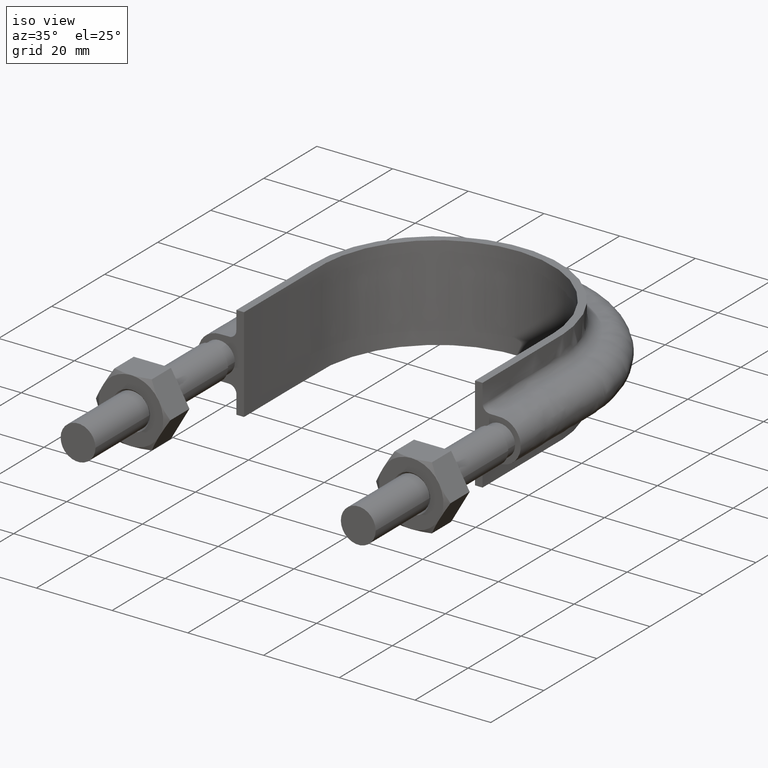
[diagram: clean part render]
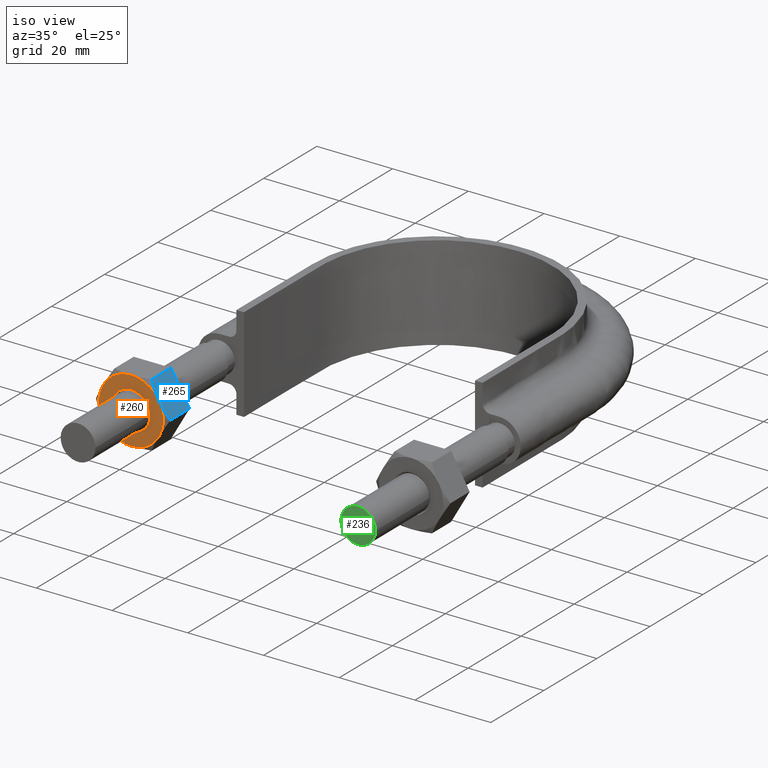
[diagram: same view with three faces highlighted in distinct colors, each labeled with its STEP entity id]
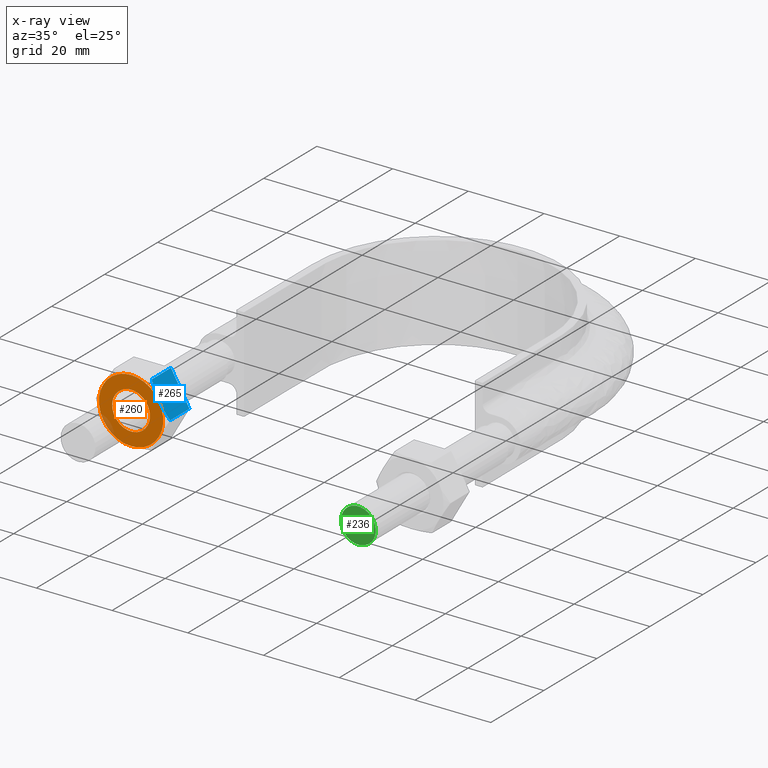
[diagram: x-ray of the same camera — body ghosted, the three highlighted faces saturated]
A machine part, iso view with three faces highlighted in distinct colors.
The next image is the same camera in x-ray (body ghosted, the three faces saturated) — at least one of them is partly hidden behind the body in this view.
Their STEP definitions:

[orange] entity #260 — the highlighted planar face has unit normal (-0, 1, -0).
#260 = ADVANCED_FACE( '', ( #390, #391 ), #392, .F. );
#390 = FACE_OUTER_BOUND( '', #1387, .T. );
#391 = FACE_BOUND( '', #1388, .T. );
#392 = PLANE( '', #1389 );
#1387 = EDGE_LOOP( '', ( #1744, #1745, #1746, #1747, #1748, #1749 ) );
#1388 = EDGE_LOOP( '', ( #1750 ) );
#1389 = AXIS2_PLACEMENT_3D( '', #1751, #1752, #1753 );
#1744 = ORIENTED_EDGE( '', *, *, #2086, .F. );
#1745 = ORIENTED_EDGE( '', *, *, #2091, .F. );
#1746 = ORIENTED_EDGE( '', *, *, #2068, .F. );
#1747 = ORIENTED_EDGE( '', *, *, #2083, .F. );
#1748 = ORIENTED_EDGE( '', *, *, #2053, .F. );
#1749 = ORIENTED_EDGE( '', *, *, #2092, .F. );
#1750 = ORIENTED_EDGE( '', *, *, #2093, .T. );
#1751 = CARTESIAN_POINT( '', ( -37.0000000000000, 20.0000000000000, -1.48980220521233E-015 ) );
#1752 = DIRECTION( '', ( -1.49966072182214E-032, 1.00000000000000, -6.12303176911188E-017 ) );
#1753 = DIRECTION( '', ( 1.00000000000000, 0.000000000000000, -2.44921270764476E-016 ) );
#2053 = EDGE_CURVE( '', #2236, #2238, #2239, .T. );
#2068 = EDGE_CURVE( '', #2259, #2266, #2267, .T. );
#2083 = EDGE_CURVE( '', #2238, #2259, #2292, .T. );
#2086 = EDGE_CURVE( '', #2296, #2241, #2297, .T. );
#2091 = EDGE_CURVE( '', #2266, #2296, #2303, .T. );
#2092 = EDGE_CURVE( '', #2241, #2236, #2304, .T. );
#2093 = EDGE_CURVE( '', #2305, #2305, #2306, .T. );
#2236 = VERTEX_POINT( '', #2733 );
#2238 = VERTEX_POINT( '', #2740 );
#2239 = CIRCLE( '', #2741, 8.50000000000000 );
#2241 = VERTEX_POINT( '', #2748 );
#2259 = VERTEX_POINT( '', #2781 );
#2266 = VERTEX_POINT( '', #2800 );
#2267 = CIRCLE( '', #2801, 8.50000000000000 );
#2292 = CIRCLE( '', #2836, 8.50000000000000 );
#2296 = VERTEX_POINT( '', #2845 );
#2297 = CIRCLE( '', #2846, 8.50000000000000 );
#2303 = CIRCLE( '', #2859, 8.50000000000000 );
#2304 = CIRCLE( '', #2860, 8.50000000000000 );
#2305 = VERTEX_POINT( '', #2861 );
#2306 = CIRCLE( '', #2862, 5.00000000000000 );
#2733 = CARTESIAN_POINT( '', ( -29.6387840678323, 20.0000000000000, 4.25000000000000 ) );
#2740 = CARTESIAN_POINT( '', ( -29.6387840678323, 20.0000000000000, -4.25000000000001 ) );
#2741 = AXIS2_PLACEMENT_3D( '', #3127, #3128, #3129 );
#2748 = CARTESIAN_POINT( '', ( -37.0000000000000, 20.0000000000000, 8.49999999999999 ) );
#2781 = CARTESIAN_POINT( '', ( -37.0000000000000, 20.0000000000000, -8.50000000000000 ) );
#2800 = CARTESIAN_POINT( '', ( -44.3612159321677, 20.0000000000000, -4.25000000000000 ) );
#2801 = AXIS2_PLACEMENT_3D( '', #3143, #3144, #3145 );
#2836 = AXIS2_PLACEMENT_3D( '', #3175, #3176, #3177 );
#2845 = CARTESIAN_POINT( '', ( -44.3612159321677, 20.0000000000000, 4.25000000000000 ) );
#2846 = AXIS2_PLACEMENT_3D( '', #3181, #3182, #3183 );
#2859 = AXIS2_PLACEMENT_3D( '', #3189, #3190, #3191 );
#2860 = AXIS2_PLACEMENT_3D( '', #3192, #3193, #3194 );
#2861 = CARTESIAN_POINT( '', ( -37.0000000000000, 20.0000000000000, 5.00000000000000 ) );
#2862 = AXIS2_PLACEMENT_3D( '', #3195, #3196, #3197 );
#3127 = CARTESIAN_POINT( '', ( -37.0000000000000, 20.0000000000000, -1.48980220521233E-015 ) );
#3128 = DIRECTION( '', ( -1.49966072182214E-032, 1.00000000000000, -6.12303176911188E-017 ) );
#3129 = DIRECTION( '', ( 0.000000000000000, 6.12303176911188E-017, 1.00000000000000 ) );
#3143 = CARTESIAN_POINT( '', ( -37.0000000000000, 20.0000000000000, -1.48980220521233E-015 ) );
#3144 = DIRECTION( '', ( -1.49966072182214E-032, 1.00000000000000, -6.12303176911188E-017 ) );
#3145 = DIRECTION( '', ( 0.000000000000000, 6.12303176911188E-017, 1.00000000000000 ) );
#3175 = CARTESIAN_POINT( '', ( -37.0000000000000, 20.0000000000000, -1.48980220521233E-015 ) );
#3176 = DIRECTION( '', ( -1.49966072182214E-032, 1.00000000000000, -6.12303176911188E-017 ) );
#3177 = DIRECTION( '', ( 0.000000000000000, 6.12303176911188E-017, 1.00000000000000 ) );
#3181 = CARTESIAN_POINT( '', ( -37.0000000000000, 20.0000000000000, -1.48980220521233E-015 ) );
#3182 = DIRECTION( '', ( -1.49966072182214E-032, 1.00000000000000, -6.12303176911188E-017 ) );
#3183 = DIRECTION( '', ( 0.000000000000000, 6.12303176911188E-017, 1.00000000000000 ) );
#3189 = CARTESIAN_POINT( '', ( -37.0000000000000, 20.0000000000000, -1.48980220521233E-015 ) );
#3190 = DIRECTION( '', ( -1.49966072182214E-032, 1.00000000000000, -6.12303176911188E-017 ) );
#3191 = DIRECTION( '', ( 0.000000000000000, 6.12303176911188E-017, 1.00000000000000 ) );
#3192 = CARTESIAN_POINT( '', ( -37.0000000000000, 20.0000000000000, -1.48980220521233E-015 ) );
#3193 = DIRECTION( '', ( -1.49966072182214E-032, 1.00000000000000, -6.12303176911188E-017 ) );
#3194 = DIRECTION( '', ( 0.000000000000000, 6.12303176911188E-017, 1.00000000000000 ) );
#3195 = CARTESIAN_POINT( '', ( -37.0000000000000, 20.0000000000000, -1.48980220521233E-015 ) );
#3196 = DIRECTION( '', ( -1.49966072182214E-032, 1.00000000000000, -6.12303176911188E-017 ) );
#3197 = DIRECTION( '', ( 0.000000000000000, 6.12303176911188E-017, 1.00000000000000 ) );

[blue] entity #265 — the highlighted planar face has unit normal (-0.866, 0, -0.5).
#265 = ADVANCED_FACE( '', ( #401 ), #402, .F. );
#401 = FACE_OUTER_BOUND( '', #1398, .T. );
#402 = PLANE( '', #1399 );
#1398 = EDGE_LOOP( '', ( #1784, #1785, #1786, #1787, #1788 ) );
#1399 = AXIS2_PLACEMENT_3D( '', #1789, #1790, #1791 );
#1784 = ORIENTED_EDGE( '', *, *, #2100, .F. );
#1785 = ORIENTED_EDGE( '', *, *, #2052, .F. );
#1786 = ORIENTED_EDGE( '', *, *, #2101, .F. );
#1787 = ORIENTED_EDGE( '', *, *, #2073, .F. );
#1788 = ORIENTED_EDGE( '', *, *, #2082, .F. );
#1789 = CARTESIAN_POINT( '', ( -32.0925227118882, 28.0000000000000, 8.49999999999999 ) );
#1790 = DIRECTION( '', ( -0.866025403784439, 1.81492883563643E-016, -0.500000000000000 ) );
#1791 = DIRECTION( '', ( -0.500000000000000, -1.00748789068985E-032, 0.866025403784439 ) );
#2052 = EDGE_CURVE( '', #2233, #2236, #2237, .T. );
#2073 = EDGE_CURVE( '', #2273, #2275, #2276, .T. );
#2082 = EDGE_CURVE( '', #2289, #2273, #2291, .F. );
#2100 = EDGE_CURVE( '', #2236, #2289, #2315, .T. );
#2101 = EDGE_CURVE( '', #2275, #2233, #2316, .T. );
#2233 = VERTEX_POINT( '', #2730 );
#2236 = VERTEX_POINT( '', #2733 );
#2237 = B_SPLINE_CURVE_WITH_KNOTS( '', 3, ( #2734, #2735, #2736, #2737, #2738, #2739 ), .UNSPECIFIED., .F., .F., ( 4, 2, 4 ), ( 1.62610574688565E-017, 0.00246745482903607, 0.00493490965807212 ), .UNSPECIFIED. );
#2273 = VERTEX_POINT( '', #2812 );
#2275 = VERTEX_POINT( '', #2814 );
#2276 = LINE( '', #2815, #2816 );
#2289 = VERTEX_POINT( '', #2832 );
#2291 = LINE( '', #2834, #2835 );
#2315 = B_SPLINE_CURVE_WITH_KNOTS( '', 3, ( #2884, #2885, #2886, #2887, #2888, #2889 ), .UNSPECIFIED., .F., .F., ( 4, 2, 4 ), ( 7.75791922889773E-018, 0.00246745482903607, 0.00493490965807213 ), .UNSPECIFIED. );
#2316 = LINE( '', #2890, #2891 );
#2730 = CARTESIAN_POINT( '', ( -27.2000343881808, 20.7505553499465, 0.0259616479013416 ) );
#2733 = CARTESIAN_POINT( '', ( -29.6387840678323, 20.0000000000000, 4.25000000000000 ) );
#2734 = CARTESIAN_POINT( '', ( -27.2000343881808, 20.7505553499465, 0.0259616479013539 ) );
#2735 = CARTESIAN_POINT( '', ( -27.5984982144937, 20.5215585493656, 0.716121240053456 ) );
#2736 = CARTESIAN_POINT( '', ( -28.0000624800009, 20.3328582843706, 1.41165095041602 ) );
#2737 = CARTESIAN_POINT( '', ( -28.8121309439895, 20.0716504305290, 2.81819478926868 ) );
#2738 = CARTESIAN_POINT( '', ( -29.2227010927369, 20.0000000000000, 3.52932314697043 ) );
#2739 = CARTESIAN_POINT( '', ( -29.6387840678323, 20.0000000000000, 4.25000000000000 ) );
#2812 = CARTESIAN_POINT( '', ( -32.0775337474837, 28.0000000000000, 8.47403835209864 ) );
#2814 = CARTESIAN_POINT( '', ( -27.2000343881808, 28.0000000000000, 0.0259616479013282 ) );
#2815 = CARTESIAN_POINT( '', ( -34.5387840678323, 28.0000000000000, 12.7370489570875 ) );
#2816 = VECTOR( '', #3155, 1000.00000000000 );
#2832 = CARTESIAN_POINT( '', ( -32.0775337474837, 20.7505553499465, 8.47403835209864 ) );
#2834 = CARTESIAN_POINT( '', ( -32.0775337474837, 28.0000000000000, 8.47403835209864 ) );
#2835 = VECTOR( '', #3174, 1000.00000000000 );
#2884 = CARTESIAN_POINT( '', ( -29.6387840678323, 20.0000000000000, 4.25000000000000 ) );
#2885 = CARTESIAN_POINT( '', ( -30.0548670429277, 20.0000000000000, 4.97067685302958 ) );
#2886 = CARTESIAN_POINT( '', ( -30.4654371916751, 20.0716504305290, 5.68180521073132 ) );
#2887 = CARTESIAN_POINT( '', ( -31.2775056556637, 20.3328582843706, 7.08834904958399 ) );
#2888 = CARTESIAN_POINT( '', ( -31.6790699211709, 20.5215585493656, 7.78387875994650 ) );
#2889 = CARTESIAN_POINT( '', ( -32.0775337474837, 20.7505553499465, 8.47403835209860 ) );
#2890 = CARTESIAN_POINT( '', ( -27.2000343881808, 28.0000000000000, 0.0259616479013295 ) );
#2891 = VECTOR( '', #3204, 1000.00000000000 );
#3155 = DIRECTION( '', ( 0.500000000000000, -1.75487645984539E-016, -0.866025403784439 ) );
#3174 = DIRECTION( '', ( -2.44921270764475E-016, -1.00000000000000, 6.12303176911193E-017 ) );
#3204 = DIRECTION( '', ( -2.44921270764475E-016, -1.00000000000000, 6.12303176911193E-017 ) );

[green] entity #236 — the highlighted planar face has unit normal (-0, -1, 0).
#236 = ADVANCED_FACE( '', ( #337 ), #338, .T. );
#337 = FACE_OUTER_BOUND( '', #1334, .T. );
#338 = PLANE( '', #1335 );
#1334 = EDGE_LOOP( '', ( #1594 ) );
#1335 = AXIS2_PLACEMENT_3D( '', #1595, #1596, #1597 );
#1594 = ORIENTED_EDGE( '', *, *, #2048, .T. );
#1595 = CARTESIAN_POINT( '', ( 37.0000000000000, -9.06208701828559E-015, -3.67381906146710E-017 ) );
#1596 = DIRECTION( '', ( -2.44921270764476E-016, -1.00000000000000, 6.12303176911189E-017 ) );
#1597 = DIRECTION( '', ( -1.00000000000000, 2.44921270764476E-016, -3.01888774004914E-048 ) );
#2048 = EDGE_CURVE( '', #2227, #2227, #2228, .T. );
#2227 = VERTEX_POINT( '', #2724 );
#2228 = CIRCLE( '', #2725, 4.60000000000000 );
#2724 = CARTESIAN_POINT( '', ( 41.6000000000000, -1.01887248638022E-014, -3.67381906146710E-017 ) );
#2725 = AXIS2_PLACEMENT_3D( '', #3115, #3116, #3117 );
#3115 = CARTESIAN_POINT( '', ( 37.0000000000000, -9.06208701828559E-015, -3.67381906146710E-017 ) );
#3116 = DIRECTION( '', ( -2.44921270764476E-016, -1.00000000000000, 6.12303176911189E-017 ) );
#3117 = DIRECTION( '', ( 1.00000000000000, -2.44921270764476E-016, 1.02543741170147E-047 ) );